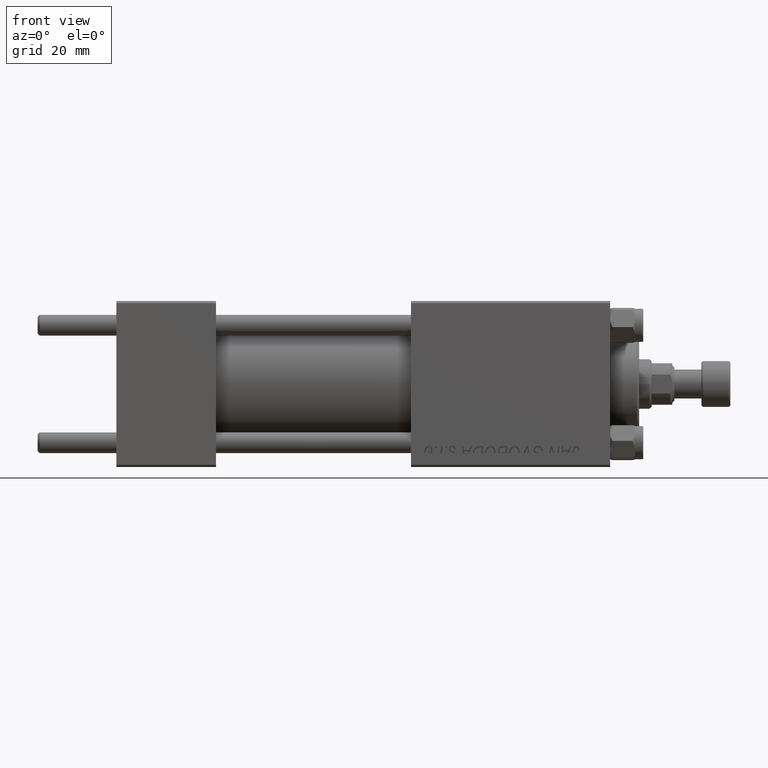
[diagram: clean part render]
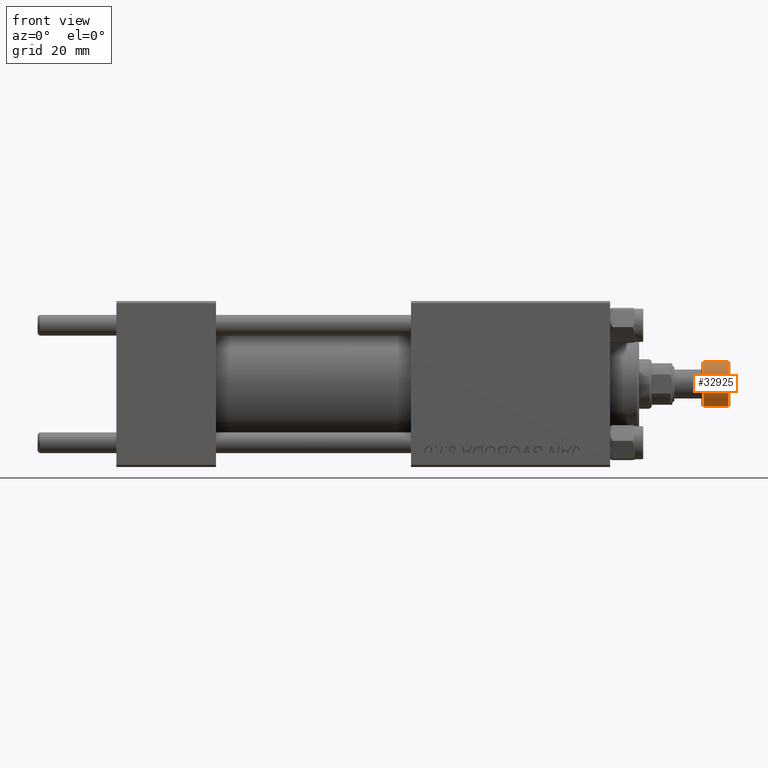
[diagram: same view with one face highlighted and labeled with its STEP entity id]
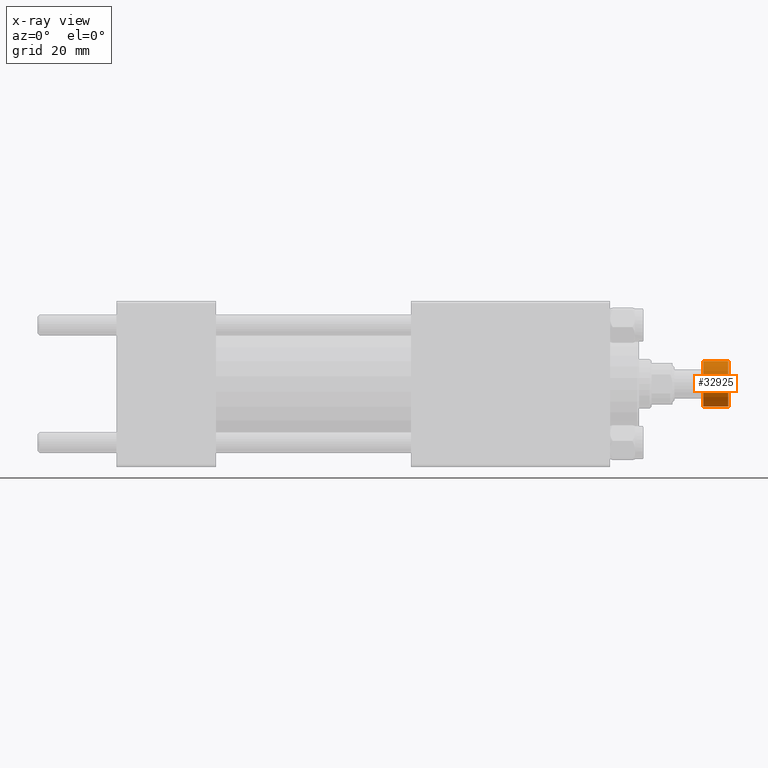
[diagram: x-ray of the same camera — body ghosted, the highlighted face saturated]
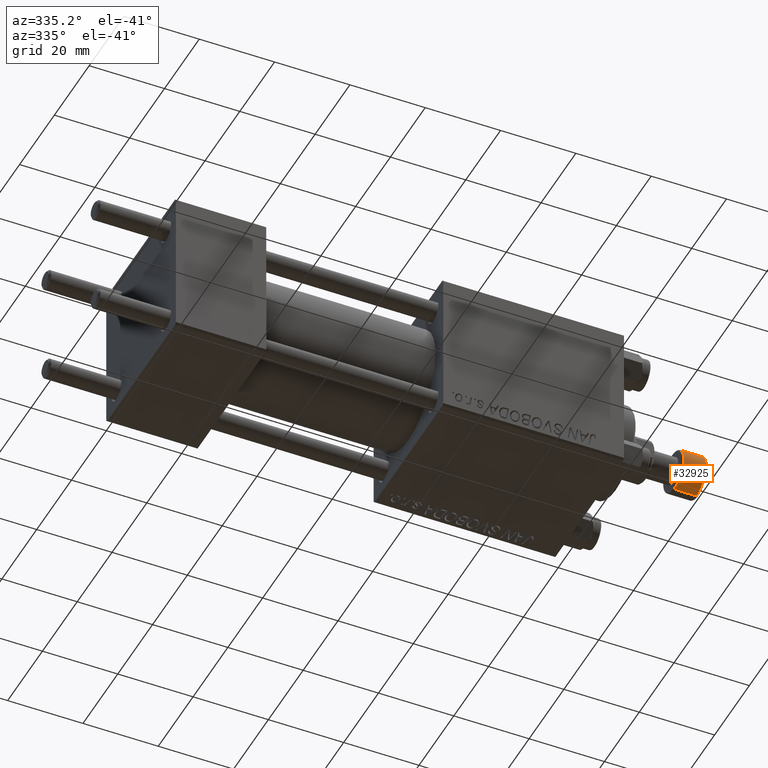
[diagram: same view with one face highlighted and labeled with its STEP entity id]
A machine part, front view. The second image highlights one B-rep face of the part: STEP entity #32925.
The next image is the same camera in x-ray: the body ghosted, the highlighted face saturated — about 0% of this face is hidden behind the body in this view.
A second angle (auxiliary view) of the same face is appended — the face is thin or edge-on in the first view.
In plain terms, the highlighted cylindrical surface (edge-blend (fillet) strip) has radius 5.5 mm, axis along (1, 0, 0).
Its self-contained STEP definition (entity closure, byte-faithful):
#279 = VECTOR ( 'NONE', #22042, 1000.000000000000000 ) ;
#1389 = CYLINDRICAL_SURFACE ( 'NONE', #27502, 5.500000000000000000 ) ;
#1745 = DIRECTION ( 'NONE',  ( 0.000000000000000000, 0.000000000000000000, 1.000000000000000000 ) ) ;
#2883 = CARTESIAN_POINT ( 'NONE',  ( 0.000000000000000000, 0.000000000000000000, -6.500000000000000888 ) ) ;
#4593 = VERTEX_POINT ( 'NONE', #35275 ) ;
#5230 = FACE_OUTER_BOUND ( 'NONE', #12960, .T. ) ;
#5640 = VERTEX_POINT ( 'NONE', #20581 ) ;
#9837 = CARTESIAN_POINT ( 'NONE',  ( -5.500000000000000000, 6.735557395310442023E-16, -7.000000000000000000 ) ) ;
#12960 = EDGE_LOOP ( 'NONE', ( #18534, #32750, #33184, #24247 ) ) ;
#14102 = VECTOR ( 'NONE', #21539, 1000.000000000000000 ) ;
#14353 = VERTEX_POINT ( 'NONE', #20526 ) ;
#14372 = EDGE_CURVE ( 'NONE', #5640, #14353, #49595, .T. ) ;
#14376 = EDGE_CURVE ( 'NONE', #43218, #4593, #29950, .T. ) ;
#14837 = DIRECTION ( 'NONE',  ( 0.000000000000000000, 0.000000000000000000, 1.000000000000000000 ) ) ;
#15739 = DIRECTION ( 'NONE',  ( 1.000000000000000000, 0.000000000000000000, 0.000000000000000000 ) ) ;
#17467 = CARTESIAN_POINT ( 'NONE',  ( 5.500000000000000000, 0.000000000000000000, -7.000000000000000000 ) ) ;
#17623 = CARTESIAN_POINT ( 'NONE',  ( 0.000000000000000000, 0.000000000000000000, -7.000000000000000000 ) ) ;
#18534 = ORIENTED_EDGE ( 'NONE', *, *, #14376, .F. ) ;
#20526 = CARTESIAN_POINT ( 'NONE',  ( 5.500000000000000000, 0.000000000000000000, -0.4999999999999995559 ) ) ;
#20581 = CARTESIAN_POINT ( 'NONE',  ( 5.500000000000000000, 0.000000000000000000, -6.500000000000000888 ) ) ;
#21539 = DIRECTION ( 'NONE',  ( 0.000000000000000000, 0.000000000000000000, 1.000000000000000000 ) ) ;
#22042 = DIRECTION ( 'NONE',  ( 0.000000000000000000, 0.000000000000000000, 1.000000000000000000 ) ) ;
#23368 = DIRECTION ( 'NONE',  ( -0.000000000000000000, -0.000000000000000000, -1.000000000000000000 ) ) ;
#24247 = ORIENTED_EDGE ( 'NONE', *, *, #43866, .T. ) ;
#25427 = CIRCLE ( 'NONE', #32738, 5.500000000000000000 ) ;
#27502 = AXIS2_PLACEMENT_3D ( 'NONE', #17623, #1745, #39272 ) ;
#29950 = LINE ( 'NONE', #9837, #14102 ) ;
#32738 = AXIS2_PLACEMENT_3D ( 'NONE', #35596, #23368, #15739 ) ;
#32750 = ORIENTED_EDGE ( 'NONE', *, *, #38968, .T. ) ;
#32925 = ADVANCED_FACE ( 'NONE', ( #5230 ), #1389, .T. ) ;
#33184 = ORIENTED_EDGE ( 'NONE', *, *, #14372, .T. ) ;
#33569 = CARTESIAN_POINT ( 'NONE',  ( -5.500000000000000000, 6.735557395310442023E-16, -6.500000000000000888 ) ) ;
#35275 = CARTESIAN_POINT ( 'NONE',  ( -5.500000000000000000, 6.735557395310442023E-16, -0.4999999999999995559 ) ) ;
#35596 = CARTESIAN_POINT ( 'NONE',  ( 0.000000000000000000, 0.000000000000000000, -0.4999999999999995559 ) ) ;
#36670 = AXIS2_PLACEMENT_3D ( 'NONE', #2883, #14837, #45425 ) ;
#38968 = EDGE_CURVE ( 'NONE', #43218, #5640, #39910, .T. ) ;
#39272 = DIRECTION ( 'NONE',  ( 1.000000000000000000, 0.000000000000000000, 0.000000000000000000 ) ) ;
#39910 = CIRCLE ( 'NONE', #36670, 5.500000000000000000 ) ;
#43218 = VERTEX_POINT ( 'NONE', #33569 ) ;
#43866 = EDGE_CURVE ( 'NONE', #14353, #4593, #25427, .T. ) ;
#45425 = DIRECTION ( 'NONE',  ( 1.000000000000000000, 0.000000000000000000, 0.000000000000000000 ) ) ;
#49595 = LINE ( 'NONE', #17467, #279 ) ;